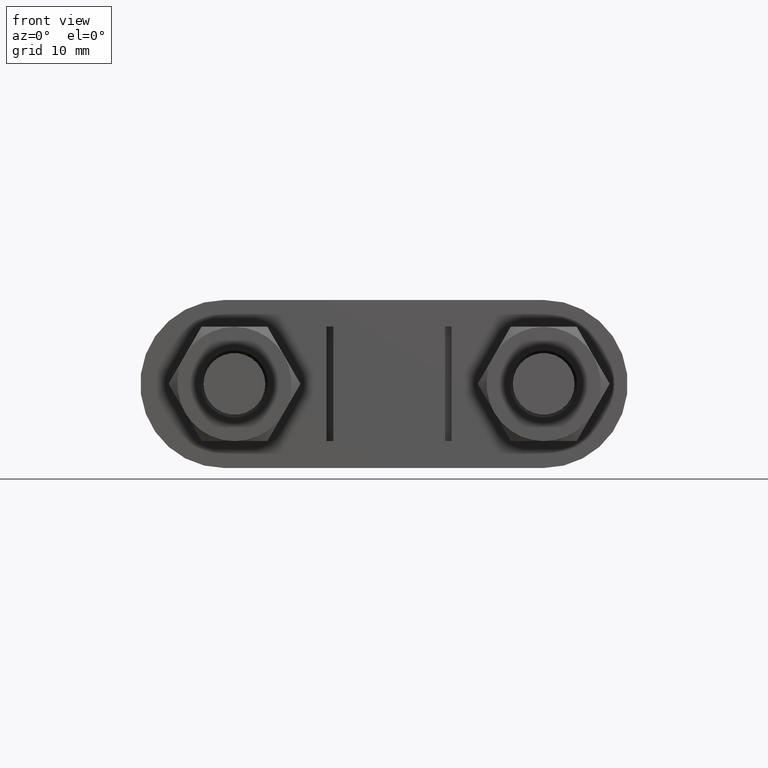
[diagram: clean part render]
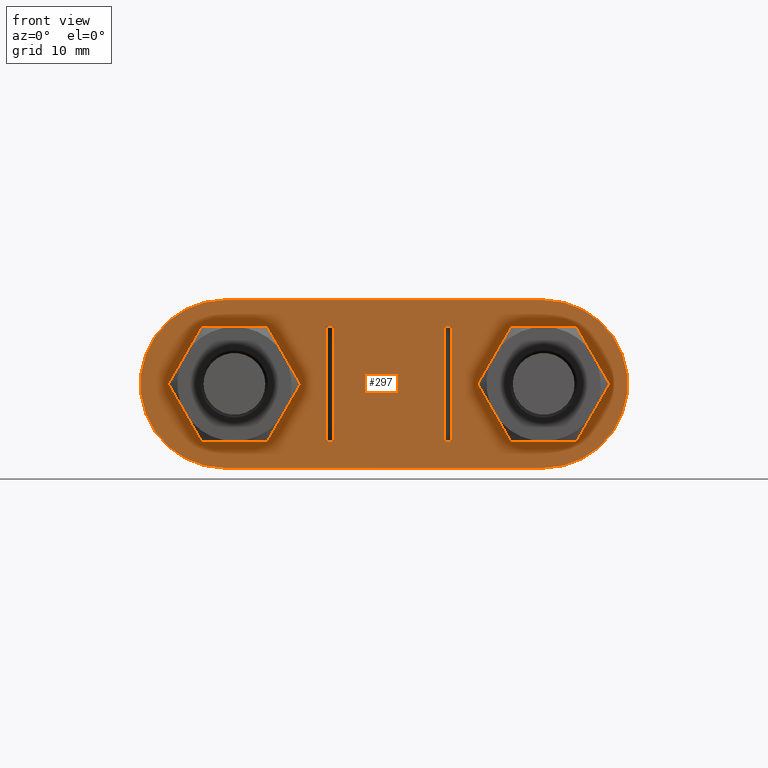
[diagram: same view with one face highlighted and labeled with its STEP entity id]
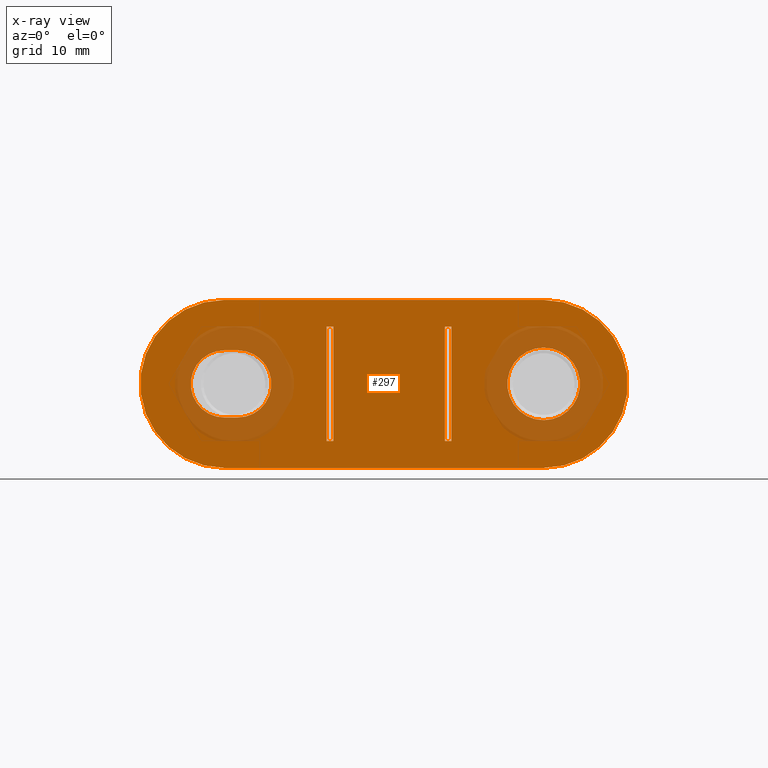
[diagram: x-ray of the same camera — body ghosted, the highlighted face saturated]
A machine part, front view. The second image highlights one B-rep face of the part: STEP entity #297.
The next image is the same camera in x-ray: the body ghosted, the highlighted face saturated — about 20% of this face is hidden behind the body in this view.
In plain terms, the highlighted planar face has unit normal (0, 1, -0).
Its self-contained STEP definition (entity closure, byte-faithful):
#297 = ADVANCED_FACE( '', ( #449, #450, #451, #452, #453 ), #454, .F. );
#449 = FACE_OUTER_BOUND( '', #1527, .T. );
#450 = FACE_BOUND( '', #1528, .T. );
#451 = FACE_BOUND( '', #1529, .T. );
#452 = FACE_BOUND( '', #1530, .T. );
#453 = FACE_BOUND( '', #1531, .T. );
#454 = PLANE( '', #1532 );
#1527 = EDGE_LOOP( '', ( #1902, #1903, #1904, #1905 ) );
#1528 = EDGE_LOOP( '', ( #1906, #1907, #1908, #1909 ) );
#1529 = EDGE_LOOP( '', ( #1910 ) );
#1530 = EDGE_LOOP( '', ( #1911, #1912, #1913, #1914 ) );
#1531 = EDGE_LOOP( '', ( #1915, #1916, #1917, #1918 ) );
#1532 = AXIS2_PLACEMENT_3D( '', #1919, #1920, #1921 );
#1902 = ORIENTED_EDGE( '', *, *, #2565, .F. );
#1903 = ORIENTED_EDGE( '', *, *, #2566, .F. );
#1904 = ORIENTED_EDGE( '', *, *, #2567, .F. );
#1905 = ORIENTED_EDGE( '', *, *, #2568, .F. );
#1906 = ORIENTED_EDGE( '', *, *, #2569, .F. );
#1907 = ORIENTED_EDGE( '', *, *, #2570, .T. );
#1908 = ORIENTED_EDGE( '', *, *, #2571, .T. );
#1909 = ORIENTED_EDGE( '', *, *, #2572, .F. );
#1910 = ORIENTED_EDGE( '', *, *, #2573, .T. );
#1911 = ORIENTED_EDGE( '', *, *, #2574, .F. );
#1912 = ORIENTED_EDGE( '', *, *, #2575, .F. );
#1913 = ORIENTED_EDGE( '', *, *, #2576, .F. );
#1914 = ORIENTED_EDGE( '', *, *, #2577, .F. );
#1915 = ORIENTED_EDGE( '', *, *, #2578, .T. );
#1916 = ORIENTED_EDGE( '', *, *, #2579, .T. );
#1917 = ORIENTED_EDGE( '', *, *, #2580, .F. );
#1918 = ORIENTED_EDGE( '', *, *, #2581, .F. );
#1919 = CARTESIAN_POINT( '', ( -24.5000000000000, 30.2999999999996, 2.04653852813105E-009 ) );
#1920 = DIRECTION( '', ( 2.67122035836178E-028, 1.00000000000000, -1.57436294250947E-014 ) );
#1921 = DIRECTION( '', ( 1.00000000000000, 0.000000000000000, 1.69669920844552E-014 ) );
#2565 = EDGE_CURVE( '', #2829, #2830, #2831, .T. );
#2566 = EDGE_CURVE( '', #2832, #2829, #2833, .F. );
#2567 = EDGE_CURVE( '', #2834, #2832, #2835, .T. );
#2568 = EDGE_CURVE( '', #2830, #2834, #2836, .F. );
#2569 = EDGE_CURVE( '', #2837, #2838, #2839, .F. );
#2570 = EDGE_CURVE( '', #2837, #2840, #2841, .T. );
#2571 = EDGE_CURVE( '', #2840, #2842, #2843, .T. );
#2572 = EDGE_CURVE( '', #2838, #2842, #2844, .T. );
#2573 = EDGE_CURVE( '', #2845, #2845, #2846, .T. );
#2574 = EDGE_CURVE( '', #2847, #2848, #2849, .F. );
#2575 = EDGE_CURVE( '', #2850, #2847, #2851, .T. );
#2576 = EDGE_CURVE( '', #2852, #2850, #2853, .F. );
#2577 = EDGE_CURVE( '', #2848, #2852, #2854, .T. );
#2578 = EDGE_CURVE( '', #2855, #2856, #2857, .F. );
#2579 = EDGE_CURVE( '', #2856, #2858, #2859, .T. );
#2580 = EDGE_CURVE( '', #2860, #2858, #2861, .T. );
#2581 = EDGE_CURVE( '', #2855, #2860, #2862, .T. );
#2829 = VERTEX_POINT( '', #3407 );
#2830 = VERTEX_POINT( '', #3408 );
#2831 = CIRCLE( '', #3409, 12.5000000000000 );
#2832 = VERTEX_POINT( '', #3410 );
#2833 = LINE( '', #3411, #3412 );
#2834 = VERTEX_POINT( '', #3413 );
#2835 = CIRCLE( '', #3414, 12.5000000000000 );
#2836 = LINE( '', #3415, #3416 );
#2837 = VERTEX_POINT( '', #3417 );
#2838 = VERTEX_POINT( '', #3418 );
#2839 = LINE( '', #3419, #3420 );
#2840 = VERTEX_POINT( '', #3421 );
#2841 = LINE( '', #3422, #3423 );
#2842 = VERTEX_POINT( '', #3424 );
#2843 = LINE( '', #3425, #3426 );
#2844 = LINE( '', #3427, #3428 );
#2845 = VERTEX_POINT( '', #3429 );
#2846 = CIRCLE( '', #3430, 5.40000000000000 );
#2847 = VERTEX_POINT( '', #3431 );
#2848 = VERTEX_POINT( '', #3432 );
#2849 = CIRCLE( '', #3433, 5.00000000000000 );
#2850 = VERTEX_POINT( '', #3434 );
#2851 = LINE( '', #3435, #3436 );
#2852 = VERTEX_POINT( '', #3437 );
#2853 = CIRCLE( '', #3438, 5.00000000000000 );
#2854 = LINE( '', #3439, #3440 );
#2855 = VERTEX_POINT( '', #3441 );
#2856 = VERTEX_POINT( '', #3442 );
#2857 = LINE( '', #3443, #3444 );
#2858 = VERTEX_POINT( '', #3445 );
#2859 = LINE( '', #3446, #3447 );
#2860 = VERTEX_POINT( '', #3448 );
#2861 = LINE( '', #3449, #3450 );
#2862 = LINE( '', #3451, #3452 );
#3407 = CARTESIAN_POINT( '', ( -24.5000000010441, 30.2999999999994, -12.4999999979535 ) );
#3408 = CARTESIAN_POINT( '', ( -24.4999999994779, 30.2999999999998, 12.5000000020465 ) );
#3409 = AXIS2_PLACEMENT_3D( '', #4009, #4010, #4011 );
#3410 = CARTESIAN_POINT( '', ( 22.9999999989559, 30.2999999999994, -12.5000000019212 ) );
#3411 = CARTESIAN_POINT( '', ( 22.9999999989559, 30.2999999999994, -12.5000000019212 ) );
#3412 = VECTOR( '', #4012, 1000.00000000000 );
#3413 = CARTESIAN_POINT( '', ( 23.0000000005222, 30.2999999999998, 12.5000000000627 ) );
#3414 = AXIS2_PLACEMENT_3D( '', #4013, #4014, #4015 );
#3415 = CARTESIAN_POINT( '', ( -24.4999999989558, 30.2999999999998, 12.5000000020465 ) );
#3416 = VECTOR( '', #4016, 1000.00000000000 );
#3417 = CARTESIAN_POINT( '', ( -9.30000000070998, 30.2999999999995, -8.49999999922313 ) );
#3418 = CARTESIAN_POINT( '', ( -8.30000000070998, 30.2999999999995, -8.49999999922313 ) );
#3419 = CARTESIAN_POINT( '', ( -9.30000000071002, 30.2999999999995, -8.49999999922313 ) );
#3420 = VECTOR( '', #4017, 1000.00000000000 );
#3421 = CARTESIAN_POINT( '', ( -9.29999999928995, 30.2999999999997, 8.50000000077687 ) );
#3422 = CARTESIAN_POINT( '', ( -9.29999999999997, 30.2999999999996, 7.76869624782884E-010 ) );
#3423 = VECTOR( '', #4018, 1000.00000000000 );
#3424 = CARTESIAN_POINT( '', ( -8.29999999928996, 30.2999999999997, 8.50000000077687 ) );
#3425 = CARTESIAN_POINT( '', ( -24.5000000000000, 30.2999999999997, 8.50000000077687 ) );
#3426 = VECTOR( '', #4019, 1000.00000000000 );
#3427 = CARTESIAN_POINT( '', ( -8.30000000070998, 30.2999999999995, -8.49999999930666 ) );
#3428 = VECTOR( '', #4020, 1000.00000000000 );
#3429 = CARTESIAN_POINT( '', ( 23.0000000000001, 30.2999999999997, 5.39999999807883 ) );
#3430 = AXIS2_PLACEMENT_3D( '', #4021, #4022, #4023 );
#3431 = CARTESIAN_POINT( '', ( -24.4999999997911, 30.2999999999997, 5.00000000196301 ) );
#3432 = CARTESIAN_POINT( '', ( -24.5000000004176, 30.2999999999995, -4.99999999795346 ) );
#3433 = AXIS2_PLACEMENT_3D( '', #4024, #4025, #4026 );
#3434 = CARTESIAN_POINT( '', ( -22.4999999997911, 30.2999999999997, 5.00000000187948 ) );
#3435 = CARTESIAN_POINT( '', ( -22.4999999995823, 30.2999999999997, 5.00000000187948 ) );
#3436 = VECTOR( '', #4027, 1000.00000000000 );
#3437 = CARTESIAN_POINT( '', ( -22.5000000004176, 30.2999999999995, -4.99999999812052 ) );
#3438 = AXIS2_PLACEMENT_3D( '', #4028, #4029, #4030 );
#3439 = CARTESIAN_POINT( '', ( -24.5000000004176, 30.2999999999995, -4.99999999795346 ) );
#3440 = VECTOR( '', #4031, 1000.00000000000 );
#3441 = CARTESIAN_POINT( '', ( 9.29999999928997, 30.2999999999995, -8.50000000077681 ) );
#3442 = CARTESIAN_POINT( '', ( 8.29999999929002, 30.2999999999995, -8.50000000077681 ) );
#3443 = CARTESIAN_POINT( '', ( -24.5000000000000, 30.2999999999995, -8.50000000077681 ) );
#3444 = VECTOR( '', #4032, 1000.00000000000 );
#3445 = CARTESIAN_POINT( '', ( 8.30000000071005, 30.2999999999997, 8.49999999922319 ) );
#3446 = CARTESIAN_POINT( '', ( 8.30000000000004, 30.2999999999996, -6.93273315936041E-010 ) );
#3447 = VECTOR( '', #4033, 1000.00000000000 );
#3448 = CARTESIAN_POINT( '', ( 9.30000000070999, 30.2999999999997, 8.49999999922319 ) );
#3449 = CARTESIAN_POINT( '', ( 9.30000000071000, 30.2999999999997, 8.49999999922319 ) );
#3450 = VECTOR( '', #4034, 1000.00000000000 );
#3451 = CARTESIAN_POINT( '', ( 9.29999999928997, 30.2999999999995, -8.50000000077681 ) );
#3452 = VECTOR( '', #4035, 1000.00000000000 );
#4009 = CARTESIAN_POINT( '', ( -24.5000000000000, 30.2999999999996, 2.04653852813105E-009 ) );
#4010 = DIRECTION( '', ( 2.67122035836178E-028, 1.00000000000000, -1.57436294250947E-014 ) );
#4011 = DIRECTION( '', ( 0.000000000000000, 1.57436294250947E-014, 1.00000000000000 ) );
#4012 = DIRECTION( '', ( 1.00000000000000, -1.31534585275162E-024, -8.35308489044844E-011 ) );
#4013 = CARTESIAN_POINT( '', ( 23.0000000000001, 30.2999999999996, -1.92117332538501E-009 ) );
#4014 = DIRECTION( '', ( 2.67122035836178E-028, 1.00000000000000, -1.57436294250947E-014 ) );
#4015 = DIRECTION( '', ( 0.000000000000000, 1.57436294250947E-014, 1.00000000000000 ) );
#4016 = DIRECTION( '', ( -1.00000000000000, 2.67122035856882E-028, 1.31507931366257E-024 ) );
#4017 = DIRECTION( '', ( -1.00000000000000, 2.67122035857174E-028, 1.33363282513029E-024 ) );
#4018 = DIRECTION( '', ( 8.35308489044844E-011, 1.57436294250947E-014, 1.00000000000000 ) );
#4019 = DIRECTION( '', ( 1.00000000000000, -2.67122035857174E-028, -1.33363282513029E-024 ) );
#4020 = DIRECTION( '', ( 8.35308489044844E-011, 1.57436294250947E-014, 1.00000000000000 ) );
#4021 = CARTESIAN_POINT( '', ( 23.0000000000001, 30.2999999999996, -1.92117506010848E-009 ) );
#4022 = DIRECTION( '', ( 2.67122035836178E-028, 1.00000000000000, -1.57436294250947E-014 ) );
#4023 = DIRECTION( '', ( 0.000000000000000, 1.57436294250947E-014, 1.00000000000000 ) );
#4024 = CARTESIAN_POINT( '', ( -24.5000000000000, 30.2999999999996, 2.04654026285452E-009 ) );
#4025 = DIRECTION( '', ( 2.67122035836178E-028, 1.00000000000000, -1.57436294250947E-014 ) );
#4026 = DIRECTION( '', ( 0.000000000000000, 1.57436294250947E-014, 1.00000000000000 ) );
#4027 = DIRECTION( '', ( -1.00000000000000, 2.67122035856882E-028, 1.31507931366257E-024 ) );
#4028 = CARTESIAN_POINT( '', ( -22.5000000000000, 30.2999999999996, 1.87947856504555E-009 ) );
#4029 = DIRECTION( '', ( 2.67122035836178E-028, 1.00000000000000, -1.57436294250947E-014 ) );
#4030 = DIRECTION( '', ( 0.000000000000000, 1.57436294250947E-014, 1.00000000000000 ) );
#4031 = DIRECTION( '', ( 1.00000000000000, -1.31534585275162E-024, -8.35308489044844E-011 ) );
#4032 = DIRECTION( '', ( 1.00000000000000, -2.67122035857174E-028, -1.33363282513029E-024 ) );
#4033 = DIRECTION( '', ( 8.35308489044844E-011, 1.57436294250947E-014, 1.00000000000000 ) );
#4034 = DIRECTION( '', ( -1.00000000000000, 2.67122035857174E-028, 1.33363282513029E-024 ) );
#4035 = DIRECTION( '', ( 8.35308489044844E-011, 1.57436294250947E-014, 1.00000000000000 ) );